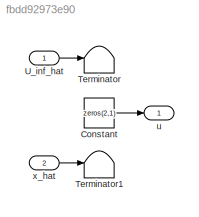
MODEL slx_fbdd92973e90
KIND model
CONFIG AbsTol = auto
CONFIG EnableMultiTasking = on
CONFIG FixedStep = DT
CONFIG MaxStep = auto
CONFIG MinStep = auto
CONFIG RelTol = 1e-3
CONFIG SampleTimeConstraint = Unconstrained
CONFIG Solver = FixedStepAuto
CONFIG SolverName = FixedStepAuto
CONFIG StartTime = 0.0
CONFIG StopTime = TMax
BLOCK [Constant] Constant
  Value = zeros(2,1)
BLOCK [Terminator] Terminator
BLOCK [Terminator] Terminator1
BLOCK [Inport] U_inf_hat
  PortDimensions = 1
BLOCK [Outport] u
  PortDimensions = [2 1]
BLOCK [Inport] x_hat
  Port = 2
  PortDimensions = [5 1]
LINE Constant:1 -> u:1
LINE U_inf_hat:1 -> Terminator:1
LINE x_hat:1 -> Terminator1:1
